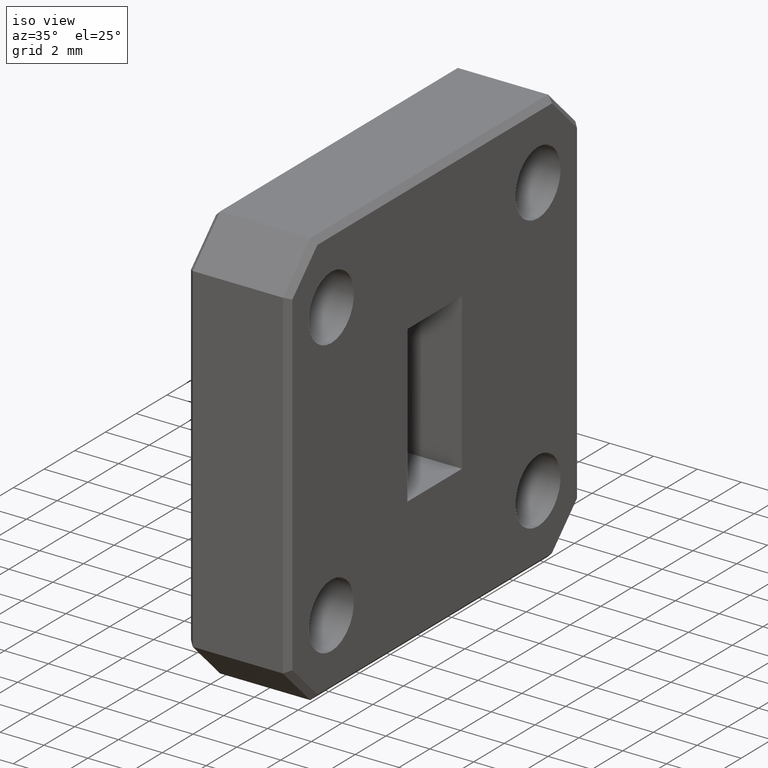
[diagram: clean part render]
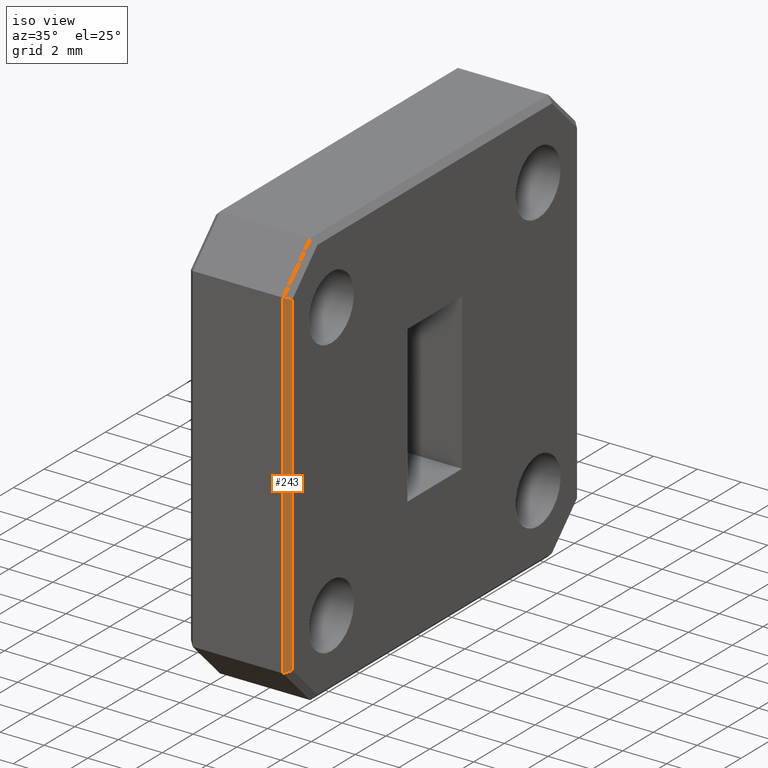
[diagram: same view with one face highlighted and labeled with its STEP entity id]
A machine part, iso view. The second image highlights one B-rep face of the part: STEP entity #243.
In plain terms, the highlighted planar face has unit normal (0.7071, -0.7071, 0).
Its self-contained STEP definition (entity closure, byte-faithful):
#26 = LINE ( 'NONE', #754, #1025 ) ;
#36 = ORIENTED_EDGE ( 'NONE', *, *, #220, .F. ) ;
#52 = CARTESIAN_POINT ( 'NONE',  ( 0.1820000000000000000, -0.3650000000000001600, -0.3008578643762689400 ) ) ;
#108 = VERTEX_POINT ( 'NONE', #52 ) ;
#127 = VECTOR ( 'NONE', #757, 39.37007874015748100 ) ;
#129 = CARTESIAN_POINT ( 'NONE',  ( 0.1820000000000000000, -0.3650000000000001600, -0.3049999999999998800 ) ) ;
#149 = DIRECTION ( 'NONE',  ( 0.6785983445458500000, 0.6785983445458405600, -0.2810846377148286100 ) ) ;
#220 = EDGE_CURVE ( 'NONE', #529, #246, #284, .T. ) ;
#243 = ADVANCED_FACE ( 'NONE', ( #1012 ), #421, .T. ) ;
#246 = VERTEX_POINT ( 'NONE', #1065 ) ;
#248 = DIRECTION ( 'NONE',  ( 0.0000000000000000000, 0.0000000000000000000, 1.000000000000000000 ) ) ;
#284 = LINE ( 'NONE', #686, #408 ) ;
#378 = CARTESIAN_POINT ( 'NONE',  ( 0.1719999999999999600, -0.3750000000000000600, 0.3049999999999997700 ) ) ;
#408 = VECTOR ( 'NONE', #149, 39.37007874015748900 ) ;
#421 = PLANE ( 'NONE',  #468 ) ;
#449 = EDGE_CURVE ( 'NONE', #570, #108, #825, .T. ) ;
#468 = AXIS2_PLACEMENT_3D ( 'NONE', #713, #794, #248 ) ;
#529 = VERTEX_POINT ( 'NONE', #378 ) ;
#570 = VERTEX_POINT ( 'NONE', #1006 ) ;
#604 = CARTESIAN_POINT ( 'NONE',  ( 0.2393867030627240300, -0.3076132969372769600, -0.2770875136678113700 ) ) ;
#686 = CARTESIAN_POINT ( 'NONE',  ( 0.1906512392830507800, -0.3563487607169494300, 0.2972744037338940800 ) ) ;
#703 = LINE ( 'NONE', #129, #127 ) ;
#711 = DIRECTION ( 'NONE',  ( 0.6785983445458518800, 0.6785983445458426700, 0.2810846377148189500 ) ) ;
#713 = CARTESIAN_POINT ( 'NONE',  ( 0.1820000000000000000, -0.3650000000000001600, 0.0000000000000000000 ) ) ;
#724 = EDGE_CURVE ( 'NONE', #246, #108, #703, .T. ) ;
#754 = CARTESIAN_POINT ( 'NONE',  ( 0.1719999999999999600, -0.3750000000000000600, 0.3049999999999997700 ) ) ;
#757 = DIRECTION ( 'NONE',  ( 0.0000000000000000000, 0.0000000000000000000, -1.000000000000000000 ) ) ;
#772 = EDGE_LOOP ( 'NONE', ( #847, #973, #36, #1045 ) ) ;
#783 = EDGE_CURVE ( 'NONE', #570, #529, #26, .T. ) ;
#794 = DIRECTION ( 'NONE',  ( 0.7071067811865426900, -0.7071067811865523500, 0.0000000000000000000 ) ) ;
#825 = LINE ( 'NONE', #604, #1126 ) ;
#847 = ORIENTED_EDGE ( 'NONE', *, *, #449, .T. ) ;
#857 = DIRECTION ( 'NONE',  ( 0.0000000000000000000, 0.0000000000000000000, 1.000000000000000000 ) ) ;
#973 = ORIENTED_EDGE ( 'NONE', *, *, #724, .F. ) ;
#1006 = CARTESIAN_POINT ( 'NONE',  ( 0.1719999999999999600, -0.3750000000000000600, -0.3049999999999998800 ) ) ;
#1012 = FACE_OUTER_BOUND ( 'NONE', #772, .T. ) ;
#1025 = VECTOR ( 'NONE', #857, 39.37007874015748100 ) ;
#1045 = ORIENTED_EDGE ( 'NONE', *, *, #783, .F. ) ;
#1065 = CARTESIAN_POINT ( 'NONE',  ( 0.1820000000000000000, -0.3650000000000001600, 0.3008578643762687100 ) ) ;
#1126 = VECTOR ( 'NONE', #711, 39.37007874015748900 ) ;